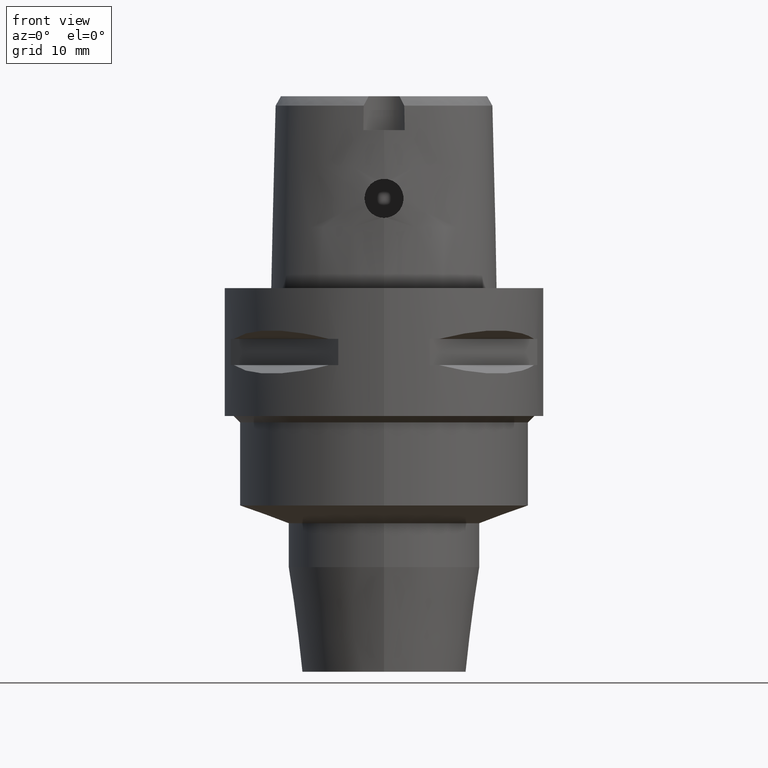
[diagram: clean part render]
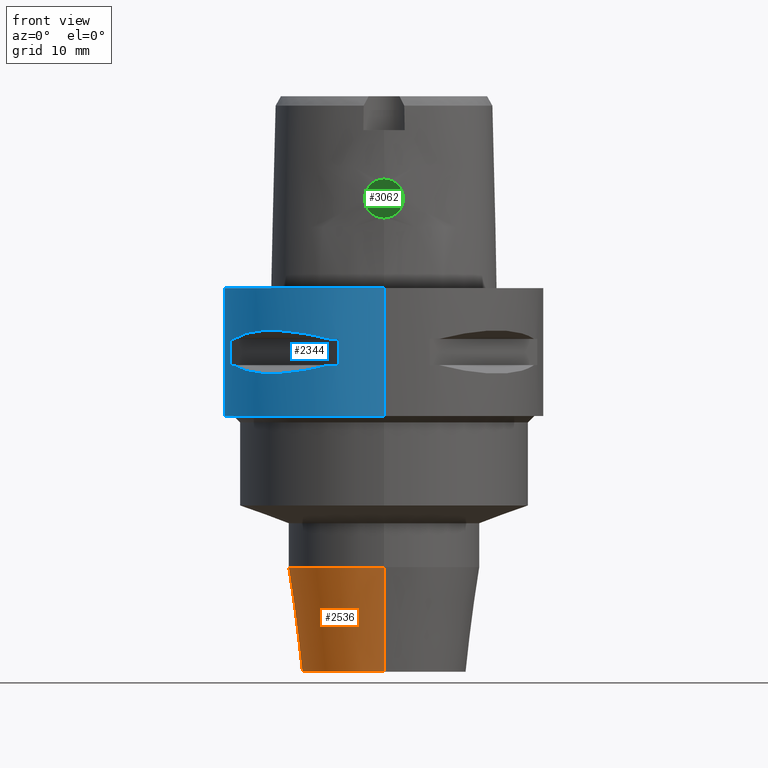
[diagram: same view with three faces highlighted in distinct colors, each labeled with its STEP entity id]
A machine part, front view with three faces highlighted in distinct colors.
Their STEP definitions:

[orange] entity #2536 — the highlighted conical surface has half-angle 7.5 deg.
#642=CARTESIAN_POINT('',(0.E0,0.E0,-4.363494776413E1));
#643=DIRECTION('',(0.E0,0.E0,1.E0));
#644=DIRECTION('',(0.E0,1.E0,0.E0));
#645=AXIS2_PLACEMENT_3D('',#642,#643,#644);
#650=DIRECTION('',(0.E0,1.305261922200E-1,-9.914448613738E-1));
#651=VECTOR('',#650,1.650626562651E1);
#652=CARTESIAN_POINT('',(0.E0,-1.5E1,-4.363494776413E1));
#653=LINE('',#652,#651);
#657=DIRECTION('',(0.E0,-1.305261922200E-1,-9.914448613738E-1));
#658=VECTOR('',#657,1.650626562651E1);
#659=CARTESIAN_POINT('',(0.E0,1.5E1,-4.363494776413E1));
#660=LINE('',#659,#658);
#680=CARTESIAN_POINT('',(0.E0,0.E0,-6.E1));
#681=DIRECTION('',(0.E0,0.E0,1.E0));
#682=DIRECTION('',(0.E0,1.E0,0.E0));
#683=AXIS2_PLACEMENT_3D('',#680,#681,#682);
#1592=CARTESIAN_POINT('',(0.E0,1.5E1,-4.363494776413E1));
#1593=VERTEX_POINT('',#1592);
#1594=CARTESIAN_POINT('',(0.E0,-1.5E1,-4.363494776413E1));
#1595=VERTEX_POINT('',#1594);
#1596=CARTESIAN_POINT('',(0.E0,1.28455E1,-6.E1));
#1597=VERTEX_POINT('',#1596);
#1598=CARTESIAN_POINT('',(0.E0,-1.28455E1,-6.E1));
#1599=VERTEX_POINT('',#1598);
#2522=CARTESIAN_POINT('',(0.E0,0.E0,-5.181747388207E1));
#2523=DIRECTION('',(0.E0,0.E0,1.E0));
#2524=DIRECTION('',(0.E0,1.E0,0.E0));
#2525=AXIS2_PLACEMENT_3D('',#2522,#2523,#2524);
#2526=CONICAL_SURFACE('',#2525,1.392275E1,7.5E0);
#2528=ORIENTED_EDGE('',*,*,#2527,.F.);
#2529=ORIENTED_EDGE('',*,*,#2517,.T.);
#2531=ORIENTED_EDGE('',*,*,#2530,.T.);
#2533=ORIENTED_EDGE('',*,*,#2532,.F.);
#2534=EDGE_LOOP('',(#2528,#2529,#2531,#2533));
#2535=FACE_OUTER_BOUND('',#2534,.F.);
#646=CIRCLE('',#645,1.5E1);
#684=CIRCLE('',#683,1.28455E1);
#2517=EDGE_CURVE('',#1593,#1595,#646,.T.);
#2527=EDGE_CURVE('',#1593,#1597,#660,.T.);
#2530=EDGE_CURVE('',#1595,#1599,#653,.T.);
#2532=EDGE_CURVE('',#1597,#1599,#684,.T.);
#2536=ADVANCED_FACE('',(#2535),#2526,.T.);

[blue] entity #2344 — the highlighted cylindrical surface (partial cylindrical patch) has radius 25 mm, axis along (0, 0, -1).
#288=CARTESIAN_POINT('',(0.E0,1.261386203122E-14,0.E0));
#289=DIRECTION('',(0.E0,0.E0,-1.E0));
#290=DIRECTION('',(0.E0,-1.E0,0.E0));
#291=AXIS2_PLACEMENT_3D('',#288,#289,#290);
#392=DIRECTION('',(0.E0,0.E0,-1.E0));
#393=VECTOR('',#392,2.E1);
#394=CARTESIAN_POINT('',(0.E0,-2.5E1,0.E0));
#395=LINE('',#394,#393);
#399=DIRECTION('',(0.E0,0.E0,-1.E0));
#400=VECTOR('',#399,4.1E0);
#401=CARTESIAN_POINT('',(-7.159921374231E0,2.395277699798E1,-7.95E0));
#402=LINE('',#401,#400);
#406=CARTESIAN_POINT('',(-8.646484890752E0,2.345715880140E1,-1.205E1));
#407=CARTESIAN_POINT('',(-1.045010326509E1,2.279233152396E1,-1.251490951850E1));
#408=CARTESIAN_POINT('',(-1.371898848499E1,2.112432544032E1,-1.316846568912E1));
#409=CARTESIAN_POINT('',(-1.780567581317E1,1.780567581317E1,-1.348201576758E1));
#410=CARTESIAN_POINT('',(-2.112432544032E1,1.371898848499E1,-1.316846568912E1));
#411=CARTESIAN_POINT('',(-2.279233152396E1,1.045010326509E1,-1.251490951850E1));
#412=CARTESIAN_POINT('',(-2.345715880140E1,8.646484890752E0,-1.205E1));
#417=DIRECTION('',(0.E0,0.E0,1.E0));
#418=VECTOR('',#417,4.1E0);
#419=CARTESIAN_POINT('',(-2.395277699798E1,7.159921374231E0,-1.205E1));
#420=LINE('',#419,#418);
#424=DIRECTION('',(0.E0,0.E0,-1.E0));
#425=VECTOR('',#424,4.1E0);
#426=CARTESIAN_POINT('',(-2.395277699798E1,-7.159921374231E0,-7.95E0));
#427=LINE('',#426,#425);
#431=CARTESIAN_POINT('',(-2.345715880140E1,-8.646484890752E0,-1.205E1));
#432=CARTESIAN_POINT('',(-2.279233152396E1,-1.045010326509E1,
-1.251490951850E1));
#433=CARTESIAN_POINT('',(-2.112432544032E1,-1.371898848499E1,
-1.316846568912E1));
#434=CARTESIAN_POINT('',(-1.780567581317E1,-1.780567581317E1,
-1.348201576758E1));
#435=CARTESIAN_POINT('',(-1.371898848499E1,-2.112432544032E1,
-1.316846568912E1));
#436=CARTESIAN_POINT('',(-1.045010326509E1,-2.279233152396E1,
-1.251490951850E1));
#437=CARTESIAN_POINT('',(-8.646484890752E0,-2.345715880140E1,-1.205E1));
#442=DIRECTION('',(0.E0,0.E0,1.E0));
#443=VECTOR('',#442,4.1E0);
#444=CARTESIAN_POINT('',(-7.159921374231E0,-2.395277699798E1,-1.205E1));
#445=LINE('',#444,#443);
#449=DIRECTION('',(0.E0,0.E0,-1.E0));
#450=VECTOR('',#449,2.E1);
#451=CARTESIAN_POINT('',(0.E0,2.5E1,0.E0));
#452=LINE('',#451,#450);
#514=CARTESIAN_POINT('',(0.E0,1.261386203122E-14,-2.E1));
#515=DIRECTION('',(0.E0,0.E0,1.E0));
#516=DIRECTION('',(0.E0,1.E0,0.E0));
#517=AXIS2_PLACEMENT_3D('',#514,#515,#516);
#1352=CARTESIAN_POINT('',(-8.646484890752E0,2.345715880140E1,
-7.949999999999E0));
#1353=CARTESIAN_POINT('',(-1.045010326509E1,2.279233152396E1,
-7.485090481496E0));
#1354=CARTESIAN_POINT('',(-1.371898848499E1,2.112432544032E1,
-6.831534310876E0));
#1355=CARTESIAN_POINT('',(-1.780567581317E1,1.780567581317E1,
-6.517984232422E0));
#1356=CARTESIAN_POINT('',(-2.112432544032E1,1.371898848499E1,
-6.831534310876E0));
#1357=CARTESIAN_POINT('',(-2.279233152396E1,1.045010326509E1,
-7.485090481496E0));
#1358=CARTESIAN_POINT('',(-2.345715880140E1,8.646484890752E0,
-7.949999999999E0));
#1363=CARTESIAN_POINT('',(0.E0,1.261386203122E-14,-7.95E0));
#1364=DIRECTION('',(0.E0,0.E0,1.E0));
#1365=DIRECTION('',(-9.382863520558E-1,3.458593956303E-1,0.E0));
#1366=AXIS2_PLACEMENT_3D('',#1363,#1364,#1365);
#1371=CARTESIAN_POINT('',(0.E0,1.261386203122E-14,-7.95E0));
#1372=DIRECTION('',(0.E0,0.E0,1.E0));
#1373=DIRECTION('',(-2.863968549694E-1,9.581110799190E-1,0.E0));
#1374=AXIS2_PLACEMENT_3D('',#1371,#1372,#1373);
#1393=CARTESIAN_POINT('',(0.E0,1.261386203122E-14,-1.205E1));
#1394=DIRECTION('',(0.E0,0.E0,-1.E0));
#1395=DIRECTION('',(-9.581110799190E-1,2.863968549694E-1,0.E0));
#1396=AXIS2_PLACEMENT_3D('',#1393,#1394,#1395);
#1401=CARTESIAN_POINT('',(0.E0,1.261386203122E-14,-1.205E1));
#1402=DIRECTION('',(0.E0,0.E0,-1.E0));
#1403=DIRECTION('',(-3.458593956303E-1,9.382863520558E-1,0.E0));
#1404=AXIS2_PLACEMENT_3D('',#1401,#1402,#1403);
#1423=CARTESIAN_POINT('',(-2.345715880140E1,-8.646484890752E0,
-7.949999999999E0));
#1424=CARTESIAN_POINT('',(-2.279233152396E1,-1.045010326509E1,
-7.485090481496E0));
#1425=CARTESIAN_POINT('',(-2.112432544032E1,-1.371898848499E1,
-6.831534310876E0));
#1426=CARTESIAN_POINT('',(-1.780567581317E1,-1.780567581317E1,
-6.517984232422E0));
#1427=CARTESIAN_POINT('',(-1.371898848499E1,-2.112432544032E1,
-6.831534310876E0));
#1428=CARTESIAN_POINT('',(-1.045010326509E1,-2.279233152396E1,
-7.485090481496E0));
#1429=CARTESIAN_POINT('',(-8.646484890752E0,-2.345715880140E1,
-7.949999999999E0));
#1434=CARTESIAN_POINT('',(0.E0,1.261386203122E-14,-7.95E0));
#1435=DIRECTION('',(0.E0,0.E0,1.E0));
#1436=DIRECTION('',(-3.458593956303E-1,-9.382863520558E-1,0.E0));
#1437=AXIS2_PLACEMENT_3D('',#1434,#1435,#1436);
#1442=CARTESIAN_POINT('',(0.E0,1.261386203122E-14,-7.95E0));
#1443=DIRECTION('',(0.E0,0.E0,1.E0));
#1444=DIRECTION('',(-9.581110799190E-1,-2.863968549694E-1,0.E0));
#1445=AXIS2_PLACEMENT_3D('',#1442,#1443,#1444);
#1464=CARTESIAN_POINT('',(0.E0,1.261386203122E-14,-1.205E1));
#1465=DIRECTION('',(0.E0,0.E0,-1.E0));
#1466=DIRECTION('',(-2.863968549694E-1,-9.581110799190E-1,0.E0));
#1467=AXIS2_PLACEMENT_3D('',#1464,#1465,#1466);
#1472=CARTESIAN_POINT('',(0.E0,1.261386203122E-14,-1.205E1));
#1473=DIRECTION('',(0.E0,0.E0,-1.E0));
#1474=DIRECTION('',(-9.382863520558E-1,-3.458593956303E-1,0.E0));
#1475=AXIS2_PLACEMENT_3D('',#1472,#1473,#1474);
#1516=CARTESIAN_POINT('',(0.E0,-2.5E1,0.E0));
#1517=CARTESIAN_POINT('',(0.E0,2.5E1,0.E0));
#1518=VERTEX_POINT('',#1516);
#1519=VERTEX_POINT('',#1517);
#1520=CARTESIAN_POINT('',(0.E0,2.5E1,-2.E1));
#1521=VERTEX_POINT('',#1520);
#1522=CARTESIAN_POINT('',(0.E0,-2.5E1,-2.E1));
#1523=VERTEX_POINT('',#1522);
#1524=VERTEX_POINT('',#1352);
#1525=VERTEX_POINT('',#1358);
#1526=CARTESIAN_POINT('',(-7.159921374235E0,2.395277699798E1,-7.95E0));
#1527=VERTEX_POINT('',#1526);
#1528=CARTESIAN_POINT('',(-7.159921374231E0,2.395277699798E1,-1.205E1));
#1529=VERTEX_POINT('',#1528);
#1530=CARTESIAN_POINT('',(-8.646484890757E0,2.345715880140E1,-1.205E1));
#1531=VERTEX_POINT('',#1530);
#1532=VERTEX_POINT('',#412);
#1533=CARTESIAN_POINT('',(-2.395277699798E1,7.159921374235E0,-1.205E1));
#1534=VERTEX_POINT('',#1533);
#1535=CARTESIAN_POINT('',(-2.395277699798E1,7.159921374231E0,-7.95E0));
#1536=VERTEX_POINT('',#1535);
#1537=VERTEX_POINT('',#1423);
#1538=VERTEX_POINT('',#1429);
#1539=CARTESIAN_POINT('',(-2.395277699798E1,-7.159921374235E0,-7.95E0));
#1540=VERTEX_POINT('',#1539);
#1541=CARTESIAN_POINT('',(-2.395277699798E1,-7.159921374231E0,-1.205E1));
#1542=VERTEX_POINT('',#1541);
#1543=CARTESIAN_POINT('',(-2.345715880140E1,-8.646484890757E0,-1.205E1));
#1544=VERTEX_POINT('',#1543);
#1545=VERTEX_POINT('',#437);
#1546=CARTESIAN_POINT('',(-7.159921374235E0,-2.395277699798E1,-1.205E1));
#1547=VERTEX_POINT('',#1546);
#1548=CARTESIAN_POINT('',(-7.159921374231E0,-2.395277699798E1,-7.95E0));
#1549=VERTEX_POINT('',#1548);
#2294=CARTESIAN_POINT('',(0.E0,1.261386203122E-14,3.E0));
#2295=DIRECTION('',(0.E0,0.E0,-1.E0));
#2296=DIRECTION('',(0.E0,-1.E0,0.E0));
#2297=AXIS2_PLACEMENT_3D('',#2294,#2295,#2296);
#2298=CYLINDRICAL_SURFACE('',#2297,2.5E1);
#2300=ORIENTED_EDGE('',*,*,#2299,.F.);
#2301=ORIENTED_EDGE('',*,*,#2282,.F.);
#2303=ORIENTED_EDGE('',*,*,#2302,.T.);
#2305=ORIENTED_EDGE('',*,*,#2304,.F.);
#2306=EDGE_LOOP('',(#2300,#2301,#2303,#2305));
#2307=FACE_OUTER_BOUND('',#2306,.F.);
#2309=ORIENTED_EDGE('',*,*,#2308,.F.);
#2311=ORIENTED_EDGE('',*,*,#2310,.F.);
#2313=ORIENTED_EDGE('',*,*,#2312,.T.);
#2315=ORIENTED_EDGE('',*,*,#2314,.F.);
#2317=ORIENTED_EDGE('',*,*,#2316,.T.);
#2319=ORIENTED_EDGE('',*,*,#2318,.F.);
#2321=ORIENTED_EDGE('',*,*,#2320,.T.);
#2323=ORIENTED_EDGE('',*,*,#2322,.F.);
#2324=EDGE_LOOP('',(#2309,#2311,#2313,#2315,#2317,#2319,#2321,#2323));
#2325=FACE_BOUND('',#2324,.F.);
#2327=ORIENTED_EDGE('',*,*,#2326,.F.);
#2329=ORIENTED_EDGE('',*,*,#2328,.F.);
#2331=ORIENTED_EDGE('',*,*,#2330,.T.);
#2333=ORIENTED_EDGE('',*,*,#2332,.F.);
#2335=ORIENTED_EDGE('',*,*,#2334,.T.);
#2337=ORIENTED_EDGE('',*,*,#2336,.F.);
#2339=ORIENTED_EDGE('',*,*,#2338,.T.);
#2341=ORIENTED_EDGE('',*,*,#2340,.F.);
#2342=EDGE_LOOP('',(#2327,#2329,#2331,#2333,#2335,#2337,#2339,#2341));
#2343=FACE_BOUND('',#2342,.F.);
#292=CIRCLE('',#291,2.5E1);
#413=B_SPLINE_CURVE_WITH_KNOTS('',3,(#406,#407,#408,#409,#410,#411,#412),
.UNSPECIFIED.,.F.,.F.,(4,1,1,1,4),(0.E0,2.5E-1,5.E-1,7.5E-1,1.E0),
.UNSPECIFIED.);
#438=B_SPLINE_CURVE_WITH_KNOTS('',3,(#431,#432,#433,#434,#435,#436,#437),
.UNSPECIFIED.,.F.,.F.,(4,1,1,1,4),(0.E0,2.5E-1,5.E-1,7.5E-1,1.E0),
.UNSPECIFIED.);
#518=CIRCLE('',#517,2.5E1);
#1359=B_SPLINE_CURVE_WITH_KNOTS('',3,(#1352,#1353,#1354,#1355,#1356,#1357,
#1358),.UNSPECIFIED.,.F.,.F.,(4,1,1,1,4),(0.E0,2.5E-1,5.E-1,7.5E-1,1.E0),
.UNSPECIFIED.);
#1367=CIRCLE('',#1366,2.5E1);
#1375=CIRCLE('',#1374,2.5E1);
#1397=CIRCLE('',#1396,2.5E1);
#1405=CIRCLE('',#1404,2.5E1);
#1430=B_SPLINE_CURVE_WITH_KNOTS('',3,(#1423,#1424,#1425,#1426,#1427,#1428,
#1429),.UNSPECIFIED.,.F.,.F.,(4,1,1,1,4),(0.E0,2.5E-1,5.E-1,7.5E-1,1.E0),
.UNSPECIFIED.);
#1438=CIRCLE('',#1437,2.5E1);
#1446=CIRCLE('',#1445,2.5E1);
#1468=CIRCLE('',#1467,2.5E1);
#1476=CIRCLE('',#1475,2.5E1);
#2282=EDGE_CURVE('',#1518,#1519,#292,.T.);
#2299=EDGE_CURVE('',#1519,#1521,#452,.T.);
#2302=EDGE_CURVE('',#1518,#1523,#395,.T.);
#2304=EDGE_CURVE('',#1521,#1523,#518,.T.);
#2308=EDGE_CURVE('',#1524,#1525,#1359,.T.);
#2310=EDGE_CURVE('',#1527,#1524,#1375,.T.);
#2312=EDGE_CURVE('',#1527,#1529,#402,.T.);
#2314=EDGE_CURVE('',#1531,#1529,#1405,.T.);
#2316=EDGE_CURVE('',#1531,#1532,#413,.T.);
#2318=EDGE_CURVE('',#1534,#1532,#1397,.T.);
#2320=EDGE_CURVE('',#1534,#1536,#420,.T.);
#2322=EDGE_CURVE('',#1525,#1536,#1367,.T.);
#2326=EDGE_CURVE('',#1537,#1538,#1430,.T.);
#2328=EDGE_CURVE('',#1540,#1537,#1446,.T.);
#2330=EDGE_CURVE('',#1540,#1542,#427,.T.);
#2332=EDGE_CURVE('',#1544,#1542,#1476,.T.);
#2334=EDGE_CURVE('',#1544,#1545,#438,.T.);
#2336=EDGE_CURVE('',#1547,#1545,#1468,.T.);
#2338=EDGE_CURVE('',#1547,#1549,#445,.T.);
#2340=EDGE_CURVE('',#1538,#1549,#1438,.T.);
#2344=ADVANCED_FACE('',(#2307,#2325,#2343),#2298,.T.);

[green] entity #3062 — the highlighted planar face has unit normal (0, 1, 0).
#1194=CARTESIAN_POINT('',(0.E0,1.4E1,1.4E1));
#1195=DIRECTION('',(0.E0,1.E0,0.E0));
#1196=DIRECTION('',(0.E0,0.E0,-1.E0));
#1197=AXIS2_PLACEMENT_3D('',#1194,#1195,#1196);
#1202=CARTESIAN_POINT('',(0.E0,1.4E1,1.4E1));
#1203=DIRECTION('',(0.E0,1.E0,0.E0));
#1204=DIRECTION('',(0.E0,0.E0,1.E0));
#1205=AXIS2_PLACEMENT_3D('',#1202,#1203,#1204);
#1637=CARTESIAN_POINT('',(0.E0,1.4E1,1.095E1));
#1638=VERTEX_POINT('',#1637);
#1639=CARTESIAN_POINT('',(0.E0,1.4E1,1.705E1));
#1640=VERTEX_POINT('',#1639);
#3053=CARTESIAN_POINT('',(0.E0,1.4E1,0.E0));
#3054=DIRECTION('',(0.E0,1.E0,0.E0));
#3055=DIRECTION('',(0.E0,0.E0,-1.E0));
#3056=AXIS2_PLACEMENT_3D('',#3053,#3054,#3055);
#3057=PLANE('',#3056);
#3058=ORIENTED_EDGE('',*,*,#2745,.T.);
#3059=ORIENTED_EDGE('',*,*,#2728,.T.);
#3060=EDGE_LOOP('',(#3058,#3059));
#3061=FACE_OUTER_BOUND('',#3060,.F.);
#1198=CIRCLE('',#1197,3.05E0);
#1206=CIRCLE('',#1205,3.05E0);
#2728=EDGE_CURVE('',#1640,#1638,#1206,.T.);
#2745=EDGE_CURVE('',#1638,#1640,#1198,.T.);
#3062=ADVANCED_FACE('',(#3061),#3057,.F.);